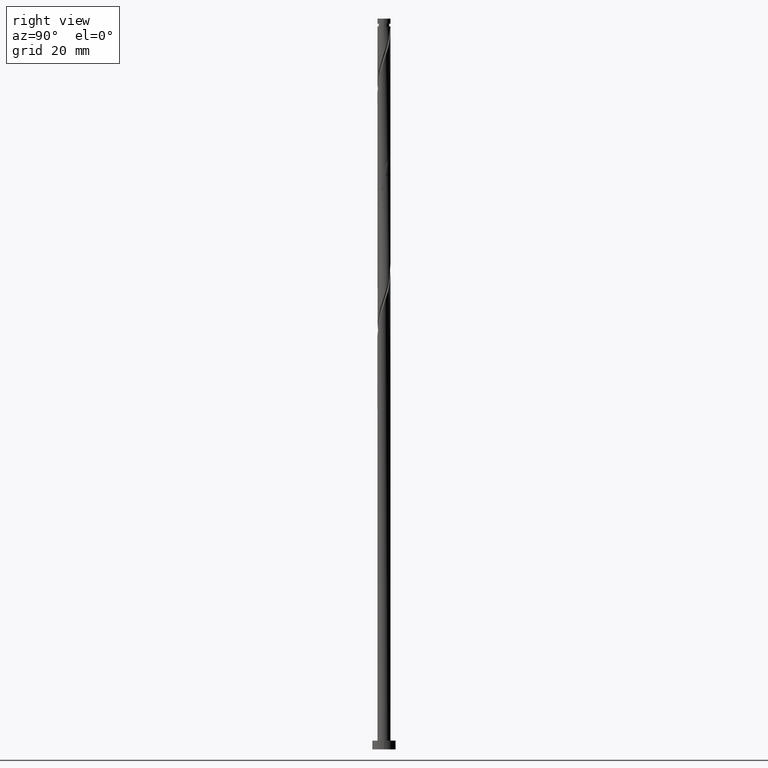
[diagram: clean part render]
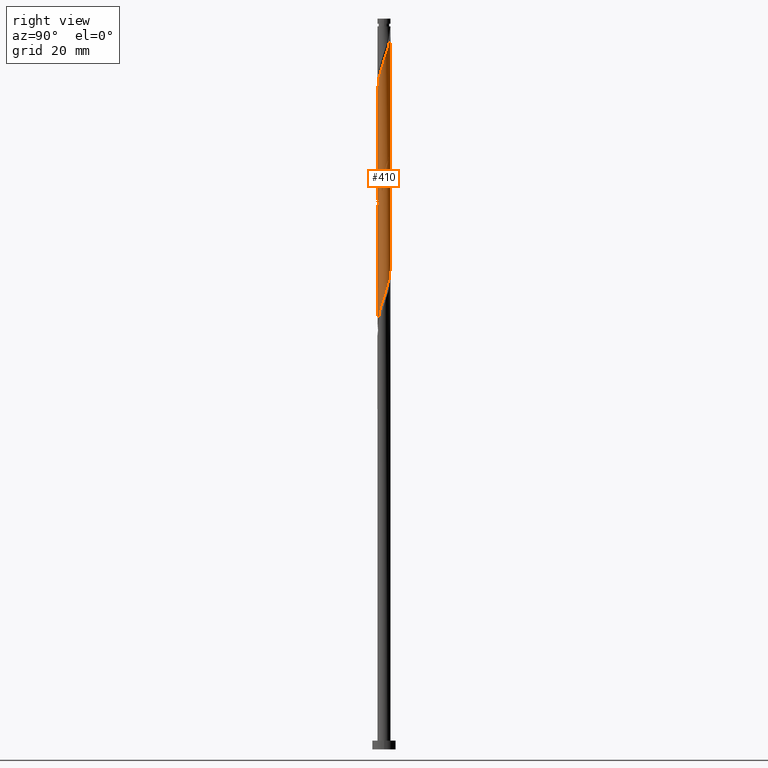
[diagram: same view with one face highlighted and labeled with its STEP entity id]
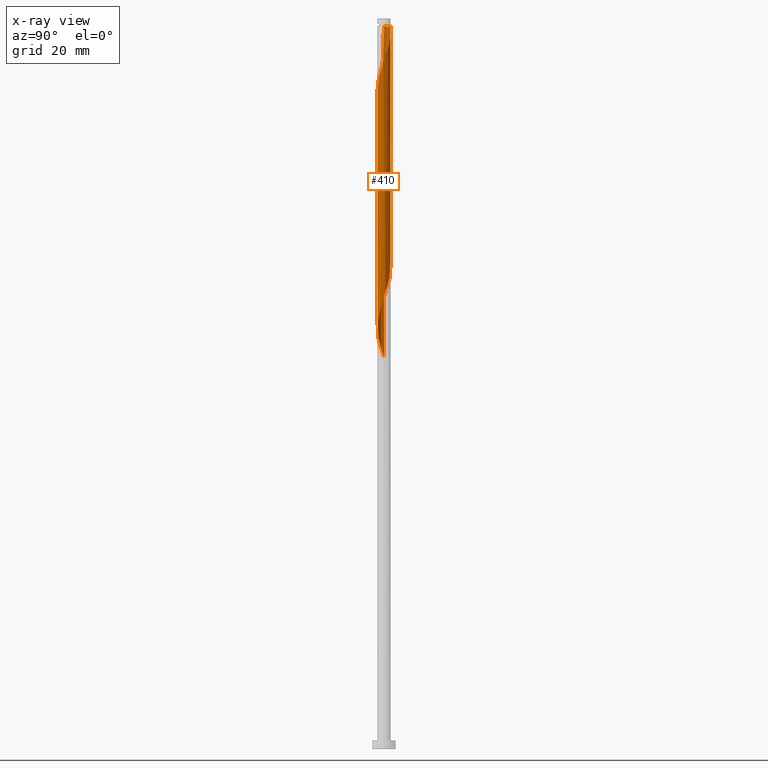
[diagram: x-ray of the same camera — body ghosted, the highlighted face saturated]
A machine part, right view. The second image highlights one B-rep face of the part: STEP entity #410.
The next image is the same camera in x-ray: the body ghosted, the highlighted face saturated — about 0% of this face is hidden behind the body in this view.
In plain terms, the highlighted cylindrical surface (bore or boss wall) has radius 2.25 mm, axis along (-0, -0, -1).
Its self-contained STEP definition (entity closure, byte-faithful):
#9 = CARTESIAN_POINT ( 'NONE',  ( -2.250000000000000000, 0.000000000000000000, 250.0000000000000000 ) ) ;
#18 = EDGE_CURVE ( 'NONE', #1128, #1163, #1183, .T. ) ;
#24 = CARTESIAN_POINT ( 'NONE',  ( -2.249999999999981348, 0.000000000000000000, 247.3656023727104127 ) ) ;
#27 = CARTESIAN_POINT ( 'NONE',  ( 0.6282566646206224625, -2.160507709627478068, 146.4040639111719315 ) ) ;
#34 = CARTESIAN_POINT ( 'NONE',  ( -2.134953450232145222, 0.7102631662573090088, 215.3143203214284256 ) ) ;
#38 = CARTESIAN_POINT ( 'NONE',  ( 1.902938481636570200, 1.200552012661973755, 239.3527818598898591 ) ) ;
#43 =( BOUNDED_CURVE ( )  B_SPLINE_CURVE ( 2, ( #1531, #625, #1270, #740, #1539, #1001, #483, #100, #1289, #1261, #1522, #643, #1558, #1136, #388, #1679, #617, #1697, #880, #634, #360, #1405, #253, #773, #1413, #351, #377, #518, #756, #1298, #227, #1279, #1144, #1689, #508, #1126, #1017, #1549, #885, #1424, #1671, #125, #1117, #861, #1396, #218, #493, #1464, #364, #1417, #760, #111, #1154, #1389, #1255, #1665, #558, #225, #48, #1628, #1185, #1517, #825, #182, #27, #1477, #405, #916, #278, #791, #668, #1055, #1589, #1088, #198, #189, #452, #1387, #60, #1489, #180 ),
 .UNSPECIFIED., .F., .T. ) 
 B_SPLINE_CURVE_WITH_KNOTS ( ( 3, 2, 2, 2, 2, 2, 2, 2, 2, 2, 2, 2, 2, 2, 2, 2, 2, 2, 2, 2, 2, 2, 2, 2, 2, 2, 2, 2, 2, 2, 2, 2, 2, 2, 2, 2, 2, 2, 2, 2, 3 ),
 ( 0.5545271625973834384, 0.5576923076923077094, 0.5673076923076922906, 0.5769230769230768718, 0.5865384615384615641, 0.5961538461538461453, 0.6057692307692307265, 0.6153846153846154188, 0.6250000000000000000, 0.6346153846153845812, 0.6442307692307692735, 0.6538461538461538547, 0.6634615384615384359, 0.6730769230769231282, 0.6826923076923077094, 0.6923076923076922906, 0.7019230769230768718, 0.7115384615384615641, 0.7211538461538461453, 0.7307692307692307265, 0.7403846153846154188, 0.7500000000000000000, 0.7596153846153845812, 0.7692307692307692735, 0.7788461538461538547, 0.7884615384615384359, 0.7980769230769231282, 0.8076923076923077094, 0.8173076923076922906, 0.8269230769230768718, 0.8365384615384615641, 0.8461538461538461453, 0.8557692307692307265, 0.8653846153846154188, 0.8750000000000000000, 0.8846153846153845812, 0.8942307692307692735, 0.9038461538461539657, 0.9134615384615385469, 0.9230769230769231282, 0.9295271625973833274 ),
 .UNSPECIFIED. ) 
 CURVE ( )  GEOMETRIC_REPRESENTATION_ITEM ( )  RATIONAL_B_SPLINE_CURVE ( ( 0.9061636035682978374, 0.9069090390690864867, 0.9090909090909430335, 0.9024626128164462413, 0.9090909090909430335, 0.9024626128164462413, 0.9090909090909430335, 0.9024626128164462413, 0.9090909090909430335, 0.9024626128164462413, 0.9090909090909430335, 0.9024626128164462413, 0.9090909090909430335, 0.9024626128164462413, 0.9090909090909430335, 0.9024626128164462413, 0.9090909090909430335, 0.9024626128164462413, 0.9090909090909430335, 0.9024626128164462413, 0.9090909090909430335, 0.9024626128164462413, 0.9090909090909430335, 0.9024626128164462413, 0.9090909090909430335, 0.9024626128164462413, 0.9090909090909430335, 0.9024626128164462413, 0.9090909090909430335, 0.9024626128164462413, 0.9090909090909430335, 0.9024626128164462413, 0.9090909090909430335, 0.9024626128164462413, 0.9090909090909430335, 0.9024626128164462413, 0.9090909090909430335, 0.9024626128164462413, 0.9090909090909430335, 0.9024626128164462413, 0.9090909090909430335, 0.9024626128164462413, 0.9090909090909430335, 0.9024626128164462413, 0.9090909090909430335, 0.9024626128164462413, 0.9090909090909430335, 0.9024626128164462413, 0.9090909090909430335, 0.9024626128164462413, 0.9090909090909430335, 0.9024626128164462413, 0.9090909090909430335, 0.9024626128164462413, 0.9090909090909430335, 0.9024626128164462413, 0.9090909090909430335, 0.9024626128164462413, 0.9090909090909430335, 0.9024626128164462413, 0.9090909090909430335, 0.9024626128164462413, 0.9090909090909430335, 0.9024626128164462413, 0.9090909090909430335, 0.9024626128164462413, 0.9090909090909430335, 0.9024626128164462413, 0.9090909090909430335, 0.9024626128164462413, 0.9090909090909430335, 0.9024626128164462413, 0.9090909090909430335, 0.9024626128164462413, 0.9090909090909430335, 0.9024626128164462413, 0.9090909090909430335, 0.9024626128164462413, 0.9090909090909430335, 0.9046444828383028991, 0.9061636035682977264 ) ) 
 REPRESENTATION_ITEM ( '' )  );
#48 = CARTESIAN_POINT ( 'NONE',  ( 1.902938481636567536, -1.200552012661973089, 151.2117562188642523 ) ) ;
#51 = CARTESIAN_POINT ( 'NONE',  ( -0.8905897954905761527, -2.084223539436641737, 222.5258587829669068 ) ) ;
#60 = CARTESIAN_POINT ( 'NONE',  ( -2.220483148606111623, -0.3632555391956088786, 135.1861151932232303 ) ) ;
#70 = CARTESIAN_POINT ( 'NONE',  ( 1.961678465785108072, -1.135321779518358998, 232.1412433983514063 ) ) ;
#89 = DIRECTION ( 'NONE',  ( -0.000000000000000000, -0.000000000000000000, -1.000000000000000000 ) ) ;
#100 = CARTESIAN_POINT ( 'NONE',  ( 1.757165075297674184, -1.431610577052243372, 192.0771408342488940 ) ) ;
#107 = CARTESIAN_POINT ( 'NONE',  ( 1.797326917357240372, 1.353556778322623444, 200.8912433983514632 ) ) ;
#111 = CARTESIAN_POINT ( 'NONE',  ( 2.176375940620509208, 0.6328710068109713038, 156.8207305778386456 ) ) ;
#125 = CARTESIAN_POINT ( 'NONE',  ( 0.1800088736928962818, 2.259366006552623318, 164.8335510906591139 ) ) ;
#154 = EDGE_CURVE ( 'NONE', #1693, #416, #862, .T. ) ;
#163 = AXIS2_PLACEMENT_3D ( 'NONE', #597, #1104, #1643 ) ;
#180 = CARTESIAN_POINT ( 'NONE',  ( -2.250000000000000000, 2.864062229124354370E-15, 134.1101909152689302 ) ) ;
#182 = CARTESIAN_POINT ( 'NONE',  ( 0.8905897954905743763, -2.084223539436639960, 147.2053459624540324 ) ) ;
#189 = CARTESIAN_POINT ( 'NONE',  ( -1.961678465785107184, -1.135321779518356111, 137.5899613470694192 ) ) ;
#191 = CARTESIAN_POINT ( 'NONE',  ( 1.127044005484668876, 1.947375621111931743, 242.5579100650180067 ) ) ;
#198 = CARTESIAN_POINT ( 'NONE',  ( -1.797326917357240372, -1.353556778322623666, 138.3912433983514632 ) ) ;
#201 = CARTESIAN_POINT ( 'NONE',  ( 2.048711887975464219, 0.9694934482717034729, 238.5514998086078435 ) ) ;
#218 = CARTESIAN_POINT ( 'NONE',  ( 1.209369679255421159, 1.916914949879461094, 161.6284228855309948 ) ) ;
#225 = CARTESIAN_POINT ( 'NONE',  ( 2.048711887975461110, -0.9694934482717034729, 152.0130382701463816 ) ) ;
#227 = CARTESIAN_POINT ( 'NONE',  ( -2.134953450232145222, 0.7102631662573090088, 173.6476536547616831 ) ) ;
#236 = CARTESIAN_POINT ( 'NONE',  ( 2.176375940620509208, 0.6328710068109713038, 198.4873972445053028 ) ) ;
#251 = ORIENTED_EDGE ( 'NONE', *, *, #588, .T. ) ;
#253 = CARTESIAN_POINT ( 'NONE',  ( -1.797326917357240372, -1.353556778322623666, 180.0579100650180919 ) ) ;
#263 = DIRECTION ( 'NONE',  ( -0.000000000000000000, -0.000000000000000000, -1.000000000000000000 ) ) ;
#278 = CARTESIAN_POINT ( 'NONE',  ( -0.4477443466979810216, -2.204999999999998739, 143.1989357060437555 ) ) ;
#312 = CARTESIAN_POINT ( 'NONE',  ( 2.250000000000000444, 2.467729857992263398E-15, 196.6101909152689586 ) ) ;
#315 = VECTOR ( 'NONE', #546, 1000.000000000000000 ) ;
#317 = VERTEX_POINT ( 'NONE', #1321 ) ;
#331 = CARTESIAN_POINT ( 'NONE',  ( -0.09295733002888825758, -2.248078943185472411, 224.9297049368129819 ) ) ;
#338 = CARTESIAN_POINT ( 'NONE',  ( 0.1800088736928952271, -2.259366006552626871, 225.7309869880950544 ) ) ;
#347 = CARTESIAN_POINT ( 'NONE',  ( 2.221195012488832887, 0.4510328842429134899, 236.9489357060437555 ) ) ;
#351 = CARTESIAN_POINT ( 'NONE',  ( -2.176375940620508764, -0.6328710068109728581, 177.6540639111719599 ) ) ;
#360 = CARTESIAN_POINT ( 'NONE',  ( -1.421172524092396916, -1.744353363503176491, 181.6604741675821515 ) ) ;
#364 = CARTESIAN_POINT ( 'NONE',  ( 1.797326917357240372, 1.353556778322623444, 159.2245767316848060 ) ) ;
#371 = CARTESIAN_POINT ( 'NONE',  ( 2.220483148606111623, 0.3632555391956091562, 197.6861151932232019 ) ) ;
#377 = CARTESIAN_POINT ( 'NONE',  ( -2.220483148606111623, -0.3632555391956088786, 176.8527818598898591 ) ) ;
#385 = EDGE_CURVE ( 'NONE', #317, #416, #1221, .T. ) ;
#388 = CARTESIAN_POINT ( 'NONE',  ( 0.09295733002888628693, -2.248078943185470191, 186.4681664752744723 ) ) ;
#403 = CARTESIAN_POINT ( 'NONE',  ( -0.8905897954905749314, 2.084223539436639072, 209.7053459624540608 ) ) ;
#405 = CARTESIAN_POINT ( 'NONE',  ( 0.09295733002888628693, -2.248078943185470191, 144.8014998086078151 ) ) ;
#410 = ADVANCED_FACE ( 'NONE', ( #992 ), #1007, .T. ) ;
#413 = EDGE_CURVE ( 'NONE', #416, #1163, #43, .T. ) ;
#416 = VERTEX_POINT ( 'NONE', #312 ) ;
#419 = CARTESIAN_POINT ( 'NONE',  ( -0.4477443466980563502, 2.205000000000757243, 247.3656023727103843 ) ) ;
#436 = CARTESIAN_POINT ( 'NONE',  ( -1.560331645388216781, 1.621069139919732116, 212.1091921163001928 ) ) ;
#452 = CARTESIAN_POINT ( 'NONE',  ( -2.069027203202806753, -0.8840963931646643736, 136.7886792957873467 ) ) ;
#469 = CARTESIAN_POINT ( 'NONE',  ( 1.797326917357241038, -1.353556778322626997, 231.3399613470693339 ) ) ;
#477 = CARTESIAN_POINT ( 'NONE',  ( 1.421172524092397582, -1.744353363503178933, 229.7373972445052459 ) ) ;
#483 = CARTESIAN_POINT ( 'NONE',  ( 1.902938481636567536, -1.200552012661973089, 192.8784228855309664 ) ) ;
#493 = CARTESIAN_POINT ( 'NONE',  ( 1.421172524092397360, 1.744353363503175602, 160.8271408342488371 ) ) ;
#508 = CARTESIAN_POINT ( 'NONE',  ( -1.560331645388216781, 1.621069139919732116, 170.4425254496335072 ) ) ;
#518 = CARTESIAN_POINT ( 'NONE',  ( -2.264590356591714038, -0.09364007158024582889, 176.0514998086078720 ) ) ;
#535 = ORIENTED_EDGE ( 'NONE', *, *, #1105, .F. ) ;
#538 = CARTESIAN_POINT ( 'NONE',  ( -1.363498215478759157, 1.810527702787223081, 211.3079100650181203 ) ) ;
#546 = DIRECTION ( 'NONE',  ( -0.000000000000000000, -0.000000000000000000, -1.000000000000000000 ) ) ;
#552 = CARTESIAN_POINT ( 'NONE',  ( -2.250000000000002220, 2.991187706657272286E-17, 214.7876804968185809 ) ) ;
#558 = CARTESIAN_POINT ( 'NONE',  ( 2.134953450232145222, -0.7102631662573094529, 152.8143203214283687 ) ) ;
#570 = CARTESIAN_POINT ( 'NONE',  ( -1.127044005484666434, 1.947375621111930855, 210.5066280137359911 ) ) ;
#574 = CARTESIAN_POINT ( 'NONE',  ( 2.176375940620510541, -0.6328710068109749676, 233.7438075009155227 ) ) ;
#581 = DIRECTION ( 'NONE',  ( -0.000000000000000000, -0.000000000000000000, -1.000000000000000000 ) ) ;
#583 = CARTESIAN_POINT ( 'NONE',  ( -1.127044005484668876, -1.947375621111932187, 221.7245767316847491 ) ) ;
#588 = EDGE_CURVE ( 'NONE', #1713, #770, #1616, .T. ) ;
#597 = CARTESIAN_POINT ( 'NONE',  ( 0.000000000000000000, 0.000000000000000000, 247.3656023727104127 ) ) ;
#604 = CARTESIAN_POINT ( 'NONE',  ( 2.134953450232148331, 0.7102631662573074545, 237.7502177573257427 ) ) ;
#617 = CARTESIAN_POINT ( 'NONE',  ( -0.4477443466979810216, -2.204999999999998739, 184.8656023727104127 ) ) ;
#625 = CARTESIAN_POINT ( 'NONE',  ( 2.250000000000000000, -0.08948954325773494922, 196.3460199996359847 ) ) ;
#634 = CARTESIAN_POINT ( 'NONE',  ( -1.209369679255420715, -1.916914949879461094, 182.4617562188643092 ) ) ;
#643 = CARTESIAN_POINT ( 'NONE',  ( 0.8905897954905743763, -2.084223539436639960, 188.8720126291207180 ) ) ;
#668 = CARTESIAN_POINT ( 'NONE',  ( -0.9624247494792431690, -2.033774471663417849, 141.5963716034796676 ) ) ;
#681 = CARTESIAN_POINT ( 'NONE',  ( -1.902938481636567536, 1.200552012661972867, 213.7117562188641955 ) ) ;
#705 = CARTESIAN_POINT ( 'NONE',  ( 2.250000000000000000, 2.755455298081544285E-16, 250.0000000000000000 ) ) ;
#708 = CARTESIAN_POINT ( 'NONE',  ( -2.134953450232147887, -0.7102631662573087867, 216.9168844239924283 ) ) ;
#718 = CARTESIAN_POINT ( 'NONE',  ( 0.6282566646206247940, 2.160507709627479844, 244.1604741675822368 ) ) ;
#723 = CARTESIAN_POINT ( 'NONE',  ( 0.7154798197030665108, 2.150633993447375492, 204.8976536547617116 ) ) ;
#740 = CARTESIAN_POINT ( 'NONE',  ( 2.221195012488829779, -0.4510328842429141560, 195.2822690393770699 ) ) ;
#747 = CARTESIAN_POINT ( 'NONE',  ( 2.069027203202807197, 0.8840963931646640406, 199.2886792957873467 ) ) ;
#756 = CARTESIAN_POINT ( 'NONE',  ( -2.242892684540271464, 0.1786964063313342399, 175.2502177573257711 ) ) ;
#760 = CARTESIAN_POINT ( 'NONE',  ( 2.069027203202807197, 0.8840963931646640406, 157.6220126291207180 ) ) ;
#763 = CARTESIAN_POINT ( 'NONE',  ( 1.961678465785107184, 1.135321779518354557, 200.0899613470693907 ) ) ;
#770 = VERTEX_POINT ( 'NONE', #1370 ) ;
#773 = CARTESIAN_POINT ( 'NONE',  ( -1.961678465785107184, -1.135321779518356111, 179.2566280137360479 ) ) ;
#783 = CARTESIAN_POINT ( 'NONE',  ( -0.3659235337506702712, 2.236791879818317508, 208.1027818598899728 ) ) ;
#785 = VECTOR ( 'NONE', #263, 1000.000000000000000 ) ;
#791 = CARTESIAN_POINT ( 'NONE',  ( -0.7154798197030663998, -2.150633993447375492, 142.3976536547617684 ) ) ;
#795 = ORIENTED_EDGE ( 'NONE', *, *, #413, .F. ) ;
#806 = CARTESIAN_POINT ( 'NONE',  ( -2.048711887975461110, 0.9694934482717035840, 214.5130382701463247 ) ) ;
#822 = CARTESIAN_POINT ( 'NONE',  ( 0.4477443466979813547, 2.204999999999998739, 205.6989357060437555 ) ) ;
#825 = CARTESIAN_POINT ( 'NONE',  ( 1.127044005484665989, -1.947375621111931299, 148.0066280137360479 ) ) ;
#835 = CARTESIAN_POINT ( 'NONE',  ( 2.264590356591716258, -0.09364007158024623134, 235.3463716034796676 ) ) ;
#853 = CARTESIAN_POINT ( 'NONE',  ( 0.9624247494792443902, 2.033774471663417849, 204.0963716034796391 ) ) ;
#861 = CARTESIAN_POINT ( 'NONE',  ( 0.7154798197030665108, 2.150633993447375492, 163.2309869880950259 ) ) ;
#862 = LINE ( 'NONE', #705, #1264 ) ;
#871 = CARTESIAN_POINT ( 'NONE',  ( 2.250000000000000888, 0.1828269867083469058, 197.1498916526172707 ) ) ;
#880 = CARTESIAN_POINT ( 'NONE',  ( -0.9624247494792431690, -2.033774471663417849, 183.2630382701463247 ) ) ;
#885 = CARTESIAN_POINT ( 'NONE',  ( -0.6282566646206224625, 2.160507709627478068, 167.2373972445052743 ) ) ;
#896 = CARTESIAN_POINT ( 'NONE',  ( 0.000000000000000000, 0.000000000000000000, 250.0000000000000000 ) ) ;
#903 = LINE ( 'NONE', #1441, #785 ) ;
#914 = CARTESIAN_POINT ( 'NONE',  ( -2.250000000000002220, 2.991187706657272286E-17, 214.7876804968185809 ) ) ;
#916 = CARTESIAN_POINT ( 'NONE',  ( -0.1800088736928968092, -2.259366006552623318, 144.0002177573258280 ) ) ;
#955 = CARTESIAN_POINT ( 'NONE',  ( -1.560331645388218780, -1.621069139919733226, 220.1220126291206896 ) ) ;
#962 = AXIS2_PLACEMENT_3D ( 'NONE', #896, #89, #1149 ) ;
#972 = CARTESIAN_POINT ( 'NONE',  ( 0.7154798197030652895, -2.150633993447378156, 227.3335510906591139 ) ) ;
#992 = FACE_OUTER_BOUND ( 'NONE', #1561, .T. ) ;
#1001 = CARTESIAN_POINT ( 'NONE',  ( 2.048711887975461110, -0.9694934482717034729, 193.6797049368130104 ) ) ;
#1007 = CYLINDRICAL_SURFACE ( 'NONE', #962, 2.250000000000000000 ) ;
#1017 = CARTESIAN_POINT ( 'NONE',  ( -1.127044005484666434, 1.947375621111930855, 168.8399613470693623 ) ) ;
#1026 = CARTESIAN_POINT ( 'NONE',  ( 1.421172524092397360, 1.744353363503175602, 202.4938075009155227 ) ) ;
#1043 = CARTESIAN_POINT ( 'NONE',  ( 0.1800088736928962818, 2.259366006552623318, 206.5002177573258280 ) ) ;
#1050 = CARTESIAN_POINT ( 'NONE',  ( 0.09295733002888947882, 2.248078943185472411, 245.7630382701463532 ) ) ;
#1053 = CARTESIAN_POINT ( 'NONE',  ( -2.250000000000000888, 0.08948954325772177920, 217.1793533329693275 ) ) ;
#1055 = CARTESIAN_POINT ( 'NONE',  ( -1.209369679255420715, -1.916914949879461094, 140.7950895521976520 ) ) ;
#1067 = CARTESIAN_POINT ( 'NONE',  ( -2.250000000000000000, 7.702308344642518630E-16, 217.4435242486023583 ) ) ;
#1081 = ORIENTED_EDGE ( 'NONE', *, *, #154, .F. ) ;
#1088 = CARTESIAN_POINT ( 'NONE',  ( -1.632975368929373339, -1.571791777126892775, 139.1925254496335072 ) ) ;
#1092 = CARTESIAN_POINT ( 'NONE',  ( 1.209369679255420715, -1.916914949879464425, 228.9361151932232303 ) ) ;
#1100 = CARTESIAN_POINT ( 'NONE',  ( 0.9624247494792426139, -2.033774471663421402, 228.1348331419411579 ) ) ;
#1104 = DIRECTION ( 'NONE',  ( -0.000000000000000000, -0.000000000000000000, -1.000000000000000000 ) ) ;
#1105 = EDGE_CURVE ( 'NONE', #1128, #770, #1143, .T. ) ;
#1117 = CARTESIAN_POINT ( 'NONE',  ( 0.4477443466979813547, 2.204999999999998739, 164.0322690393770699 ) ) ;
#1126 = CARTESIAN_POINT ( 'NONE',  ( -1.363498215478759157, 1.810527702787223081, 169.6412433983514063 ) ) ;
#1128 = VERTEX_POINT ( 'NONE', #914 ) ;
#1136 = CARTESIAN_POINT ( 'NONE',  ( 0.3659235337506694385, -2.236791879818317508, 187.2694485265565731 ) ) ;
#1143 =( BOUNDED_CURVE ( )  B_SPLINE_CURVE ( 2, ( #552, #1595, #1472, #1572, #708, #1218, #1619, #1381, #955, #1354, #583, #51, #1654, #1208, #331, #338, #1493, #972, #1100, #1092, #477, #1631, #469, #70, #1375, #574, #1645, #835, #1246, #347, #604, #201, #38, #1363, #1344, #1229, #191, #1638, #718, #1240, #1050, #1715, #419 ),
 .UNSPECIFIED., .F., .T. ) 
 B_SPLINE_CURVE_WITH_KNOTS ( ( 3, 2, 2, 2, 2, 2, 2, 2, 2, 2, 2, 2, 2, 2, 2, 2, 2, 2, 2, 2, 2, 3 ),
 ( 0.5545271625973834384, 0.5576923076923077094, 0.5673076923076922906, 0.5769230769230768718, 0.5865384615384615641, 0.5961538461538461453, 0.6057692307692308376, 0.6153846153846153078, 0.6249999999999998890, 0.6346153846153844702, 0.6442307692307690514, 0.6538461538461537437, 0.6634615384615383249, 0.6730769230769230171, 0.6826923076923075984, 0.6923076923076921796, 0.7019230769230766498, 0.7115384615384613420, 0.7211538461538460343, 0.7307692307692306155, 0.7403846153846151967, 0.7499999999999997780 ),
 .UNSPECIFIED. ) 
 CURVE ( )  GEOMETRIC_REPRESENTATION_ITEM ( )  RATIONAL_B_SPLINE_CURVE ( ( 0.9061636035683027224, 0.9069090390690914827, 0.9090909090909480295, 0.9024626128164512373, 0.9090909090909480295, 0.9024626128164512373, 0.9090909090909480295, 0.9024626128164512373, 0.9090909090909480295, 0.9024626128164512373, 0.9090909090909480295, 0.9024626128164512373, 0.9090909090909480295, 0.9024626128164512373, 0.9090909090909480295, 0.9024626128164512373, 0.9090909090909480295, 0.9024626128164512373, 0.9090909090909480295, 0.9024626128164512373, 0.9090909090909480295, 0.9024626128164512373, 0.9090909090909480295, 0.9024626128164512373, 0.9090909090909480295, 0.9024626128164512373, 0.9090909090909480295, 0.9024626128164512373, 0.9090909090909480295, 0.9024626128164512373, 0.9090909090909480295, 0.9024626128164512373, 0.9090909090909480295, 0.9024626128164512373, 0.9090909090909480295, 0.9024626128164512373, 0.9090909090909480295, 0.9024626128164512373, 0.9090909090909480295, 0.9024626128164512373, 0.9090909090909480295, 0.9024626128164513483, 0.9090909090909479184 ) ) 
 REPRESENTATION_ITEM ( '' )  );
#1144 = CARTESIAN_POINT ( 'NONE',  ( -1.902938481636567536, 1.200552012661972867, 172.0450895521975667 ) ) ;
#1149 = DIRECTION ( 'NONE',  ( -1.000000000000000000, 0.000000000000000000, 0.000000000000000000 ) ) ;
#1154 = CARTESIAN_POINT ( 'NONE',  ( 2.220483148606111623, 0.3632555391956091562, 156.0194485265566016 ) ) ;
#1163 = VERTEX_POINT ( 'NONE', #1329 ) ;
#1183 = LINE ( 'NONE', #9, #315 ) ;
#1185 = CARTESIAN_POINT ( 'NONE',  ( 1.560331645388216781, -1.621069139919732116, 149.6091921163001359 ) ) ;
#1200 = CARTESIAN_POINT ( 'NONE',  ( -1.757165075297674628, 1.431610577052242483, 212.9104741675822652 ) ) ;
#1208 = CARTESIAN_POINT ( 'NONE',  ( -0.3659235337506718255, -2.236791879818319284, 224.1284228855308811 ) ) ;
#1218 = CARTESIAN_POINT ( 'NONE',  ( -2.048711887975463330, -0.9694934482717042501, 217.7181664752745576 ) ) ;
#1221 =( BOUNDED_CURVE ( )  B_SPLINE_CURVE ( 2, ( #1067, #1053, #1467, #1609, #34, #806, #681, #1200, #436, #538, #570, #403, #1443, #783, #1311, #1043, #822, #723, #853, #1636, #1026, #1660, #107, #763, #747, #236, #371, #871, #1434 ),
 .UNSPECIFIED., .F., .T. ) 
 B_SPLINE_CURVE_WITH_KNOTS ( ( 3, 2, 2, 2, 2, 2, 2, 2, 2, 2, 2, 2, 2, 2, 3 ),
 ( 0.4295271625973829943, 0.4326923076923077094, 0.4423076923076922906, 0.4519230769230769273, 0.4615384615384615641, 0.4711538461538461453, 0.4807692307692307820, 0.4903846153846153633, 0.5000000000000000000, 0.5096153846153845812, 0.5192307692307692735, 0.5288461538461538547, 0.5384615384615384359, 0.5480769230769231282, 0.5545271625973834384 ),
 .UNSPECIFIED. ) 
 CURVE ( )  GEOMETRIC_REPRESENTATION_ITEM ( )  RATIONAL_B_SPLINE_CURVE ( ( 0.9061636035682976154, 0.9069090390690861536, 0.9090909090909430335, 0.9024626128164462413, 0.9090909090909430335, 0.9024626128164462413, 0.9090909090909430335, 0.9024626128164462413, 0.9090909090909430335, 0.9024626128164462413, 0.9090909090909430335, 0.9024626128164462413, 0.9090909090909430335, 0.9024626128164462413, 0.9090909090909430335, 0.9024626128164462413, 0.9090909090909430335, 0.9024626128164462413, 0.9090909090909430335, 0.9024626128164462413, 0.9090909090909430335, 0.9024626128164462413, 0.9090909090909430335, 0.9024626128164462413, 0.9090909090909430335, 0.9024626128164462413, 0.9090909090909430335, 0.9046444828383027881, 0.9061636035682978374 ) ) 
 REPRESENTATION_ITEM ( '' )  );
#1229 = CARTESIAN_POINT ( 'NONE',  ( 1.363498215478762265, 1.810527702787223969, 241.7566280137360764 ) ) ;
#1236 = EDGE_CURVE ( 'NONE', #1713, #317, #903, .T. ) ;
#1240 = CARTESIAN_POINT ( 'NONE',  ( 0.3659235337506719921, 2.236791879818319284, 244.9617562188642808 ) ) ;
#1246 = CARTESIAN_POINT ( 'NONE',  ( 2.242892684540274573, 0.1786964063313326301, 236.1476536547617116 ) ) ;
#1255 = CARTESIAN_POINT ( 'NONE',  ( 2.242892684540271908, -0.1786964063313355722, 154.4168844239924283 ) ) ;
#1261 = CARTESIAN_POINT ( 'NONE',  ( 1.363498215478758269, -1.810527702787223747, 190.4745767316847775 ) ) ;
#1264 = VECTOR ( 'NONE', #581, 1000.000000000000000 ) ;
#1270 = CARTESIAN_POINT ( 'NONE',  ( 2.242892684540271908, -0.1786964063313355722, 196.0835510906591992 ) ) ;
#1279 = CARTESIAN_POINT ( 'NONE',  ( -2.048711887975461110, 0.9694934482717035840, 172.8463716034796960 ) ) ;
#1289 = CARTESIAN_POINT ( 'NONE',  ( 1.560331645388216781, -1.621069139919732116, 191.2758587829667931 ) ) ;
#1298 = CARTESIAN_POINT ( 'NONE',  ( -2.221195012488829779, 0.4510328842429138785, 174.4489357060437840 ) ) ;
#1311 = CARTESIAN_POINT ( 'NONE',  ( -0.09295733002888698082, 2.248078943185470191, 207.3014998086078720 ) ) ;
#1321 = CARTESIAN_POINT ( 'NONE',  ( -2.250000000000000000, 7.702308344642518630E-16, 217.4435242486023299 ) ) ;
#1329 = CARTESIAN_POINT ( 'NONE',  ( -2.250000000000000000, 2.864062229124354370E-15, 134.1101909152689302 ) ) ;
#1344 = CARTESIAN_POINT ( 'NONE',  ( 1.560331645388219224, 1.621069139919733004, 240.9553459624540039 ) ) ;
#1354 = CARTESIAN_POINT ( 'NONE',  ( -1.363498215478761599, -1.810527702787224635, 220.9232946804027904 ) ) ;
#1356 = ORIENTED_EDGE ( 'NONE', *, *, #1236, .F. ) ;
#1363 = CARTESIAN_POINT ( 'NONE',  ( 1.757165075297677737, 1.431610577052242705, 240.1540639111719599 ) ) ;
#1370 = CARTESIAN_POINT ( 'NONE',  ( -0.4477443466980563502, 2.205000000000757243, 247.3656023727104127 ) ) ;
#1375 = CARTESIAN_POINT ( 'NONE',  ( 2.069027203202809417, -0.8840963931646660390, 232.9425254496334503 ) ) ;
#1381 = CARTESIAN_POINT ( 'NONE',  ( -1.757165075297676626, -1.431610577052243816, 219.3207305778387024 ) ) ;
#1387 = CARTESIAN_POINT ( 'NONE',  ( -2.176375940620508764, -0.6328710068109728581, 135.9873972445053312 ) ) ;
#1389 = CARTESIAN_POINT ( 'NONE',  ( 2.264590356591714038, 0.09364007158024494071, 155.2181664752745576 ) ) ;
#1396 = CARTESIAN_POINT ( 'NONE',  ( 0.9624247494792443902, 2.033774471663417849, 162.4297049368129535 ) ) ;
#1405 = CARTESIAN_POINT ( 'NONE',  ( -1.632975368929373339, -1.571791777126892775, 180.8591921163001643 ) ) ;
#1413 = CARTESIAN_POINT ( 'NONE',  ( -2.069027203202806753, -0.8840963931646643736, 178.4553459624540324 ) ) ;
#1416 = ORIENTED_EDGE ( 'NONE', *, *, #18, .T. ) ;
#1417 = CARTESIAN_POINT ( 'NONE',  ( 1.961678465785107184, 1.135321779518354557, 158.4232946804027335 ) ) ;
#1424 = CARTESIAN_POINT ( 'NONE',  ( -0.3659235337506702712, 2.236791879818317508, 166.4361151932232588 ) ) ;
#1434 = CARTESIAN_POINT ( 'NONE',  ( 2.250000000000000444, 2.467729857992263398E-15, 196.6101909152689586 ) ) ;
#1441 = CARTESIAN_POINT ( 'NONE',  ( -2.250000000000000000, 0.000000000000000000, 250.0000000000000000 ) ) ;
#1443 = CARTESIAN_POINT ( 'NONE',  ( -0.6282566646206224625, 2.160507709627478068, 208.9040639111719315 ) ) ;
#1464 = CARTESIAN_POINT ( 'NONE',  ( 1.632975368929374005, 1.571791777126892775, 160.0258587829668500 ) ) ;
#1467 = CARTESIAN_POINT ( 'NONE',  ( -2.242892684540271464, 0.1786964063313342399, 216.9168844239924283 ) ) ;
#1472 = CARTESIAN_POINT ( 'NONE',  ( -2.242892684540274129, -0.1786964063313334905, 215.3143203214283972 ) ) ;
#1477 = CARTESIAN_POINT ( 'NONE',  ( 0.3659235337506694385, -2.236791879818317508, 145.6027818598899444 ) ) ;
#1489 = CARTESIAN_POINT ( 'NONE',  ( -2.250000000000000888, -0.1828269867083505140, 134.6498916526172707 ) ) ;
#1493 = CARTESIAN_POINT ( 'NONE',  ( 0.4477443466979806885, -2.205000000000001847, 226.5322690393770131 ) ) ;
#1516 = ORIENTED_EDGE ( 'NONE', *, *, #154, .T. ) ;
#1517 = CARTESIAN_POINT ( 'NONE',  ( 1.363498215478758269, -1.810527702787223747, 148.8079100650180919 ) ) ;
#1522 = CARTESIAN_POINT ( 'NONE',  ( 1.127044005484665989, -1.947375621111931299, 189.6732946804027620 ) ) ;
#1531 = CARTESIAN_POINT ( 'NONE',  ( 2.250000000000000444, 2.467729857992263398E-15, 196.6101909152689586 ) ) ;
#1539 = CARTESIAN_POINT ( 'NONE',  ( 2.134953450232145222, -0.7102631662573094529, 194.4809869880950259 ) ) ;
#1549 = CARTESIAN_POINT ( 'NONE',  ( -0.8905897954905749314, 2.084223539436639072, 168.0386792957873467 ) ) ;
#1558 = CARTESIAN_POINT ( 'NONE',  ( 0.6282566646206224625, -2.160507709627478068, 188.0707305778386171 ) ) ;
#1561 = EDGE_LOOP ( 'NONE', ( #1356, #251, #535, #1416, #795, #1081, #1516, #1704 ) ) ;
#1572 = CARTESIAN_POINT ( 'NONE',  ( -2.221195012488832887, -0.4510328842429138230, 216.1156023727104696 ) ) ;
#1589 = CARTESIAN_POINT ( 'NONE',  ( -1.421172524092396916, -1.744353363503176491, 139.9938075009155227 ) ) ;
#1595 = CARTESIAN_POINT ( 'NONE',  ( -2.250000000000002220, -0.08948954325773306184, 215.0518514124515264 ) ) ;
#1607 = CARTESIAN_POINT ( 'NONE',  ( 2.250000000000000000, 2.755455298081544285E-16, 247.3656023727104127 ) ) ;
#1609 = CARTESIAN_POINT ( 'NONE',  ( -2.221195012488829779, 0.4510328842429138785, 216.1156023727104412 ) ) ;
#1616 = CIRCLE ( 'NONE', #163, 2.249999999999981348 ) ;
#1619 = CARTESIAN_POINT ( 'NONE',  ( -1.902938481636570200, -1.200552012661973755, 218.5194485265564879 ) ) ;
#1628 = CARTESIAN_POINT ( 'NONE',  ( 1.757165075297674184, -1.431610577052243372, 150.4104741675822368 ) ) ;
#1631 = CARTESIAN_POINT ( 'NONE',  ( 1.632975368929374449, -1.571791777126895218, 230.5386792957873467 ) ) ;
#1636 = CARTESIAN_POINT ( 'NONE',  ( 1.209369679255421159, 1.916914949879461094, 203.2950895521976804 ) ) ;
#1638 = CARTESIAN_POINT ( 'NONE',  ( 0.8905897954905765967, 2.084223539436641737, 243.3591921163001928 ) ) ;
#1643 = DIRECTION ( 'NONE',  ( -1.000000000000000000, 0.000000000000000000, 0.000000000000000000 ) ) ;
#1645 = CARTESIAN_POINT ( 'NONE',  ( 2.220483148606112955, -0.3632555391956107105, 234.5450895521975667 ) ) ;
#1654 = CARTESIAN_POINT ( 'NONE',  ( -0.6282566646206237948, -2.160507709627479844, 223.3271408342488940 ) ) ;
#1660 = CARTESIAN_POINT ( 'NONE',  ( 1.632975368929374005, 1.571791777126892775, 201.6925254496335072 ) ) ;
#1665 = CARTESIAN_POINT ( 'NONE',  ( 2.221195012488829779, -0.4510328842429141560, 153.6156023727104696 ) ) ;
#1671 = CARTESIAN_POINT ( 'NONE',  ( -0.09295733002888698082, 2.248078943185470191, 165.6348331419411295 ) ) ;
#1679 = CARTESIAN_POINT ( 'NONE',  ( -0.1800088736928968092, -2.259366006552623318, 185.6668844239924283 ) ) ;
#1689 = CARTESIAN_POINT ( 'NONE',  ( -1.757165075297674628, 1.431610577052242483, 171.2438075009155796 ) ) ;
#1693 = VERTEX_POINT ( 'NONE', #1607 ) ;
#1697 = CARTESIAN_POINT ( 'NONE',  ( -0.7154798197030663998, -2.150633993447375492, 184.0643203214283119 ) ) ;
#1704 = ORIENTED_EDGE ( 'NONE', *, *, #385, .F. ) ;
#1713 = VERTEX_POINT ( 'NONE', #24 ) ;
#1715 = CARTESIAN_POINT ( 'NONE',  ( -0.1800088736928886213, 2.259366006552626871, 246.5643203214283687 ) ) ;